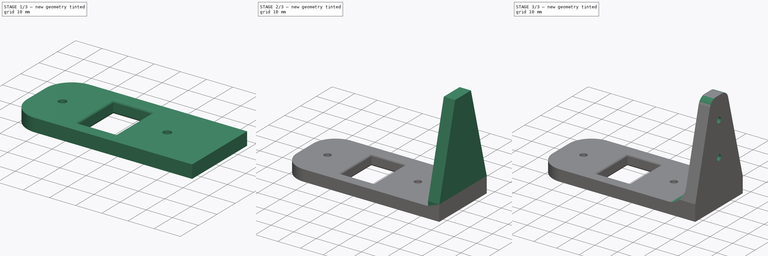
[diagram: build sequence overview — one tinted view per stage of 3, left to right]
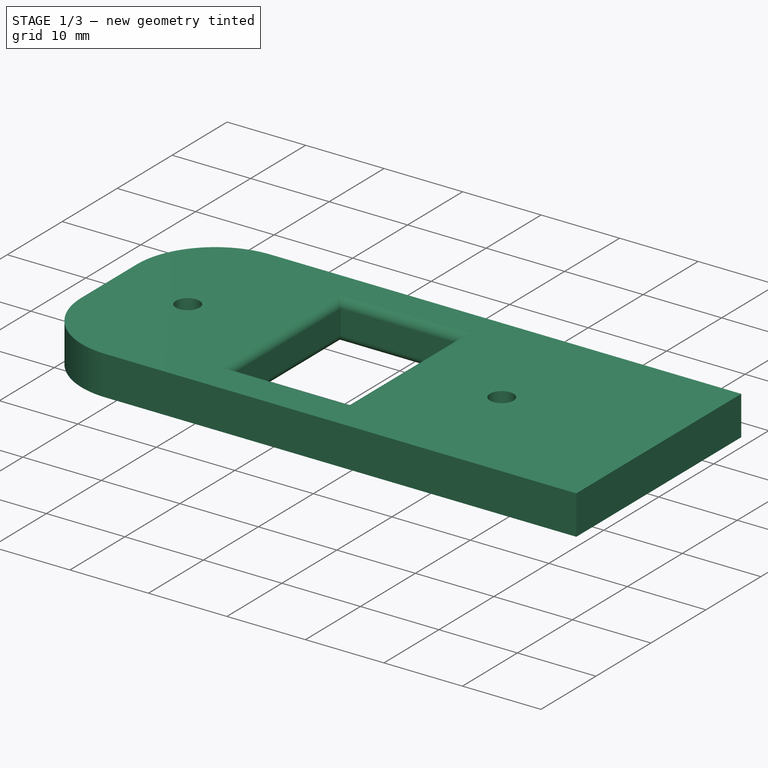
[diagram: stage 1 of 3 — iso view after this stage's code; geometry added in this stage tinted green]
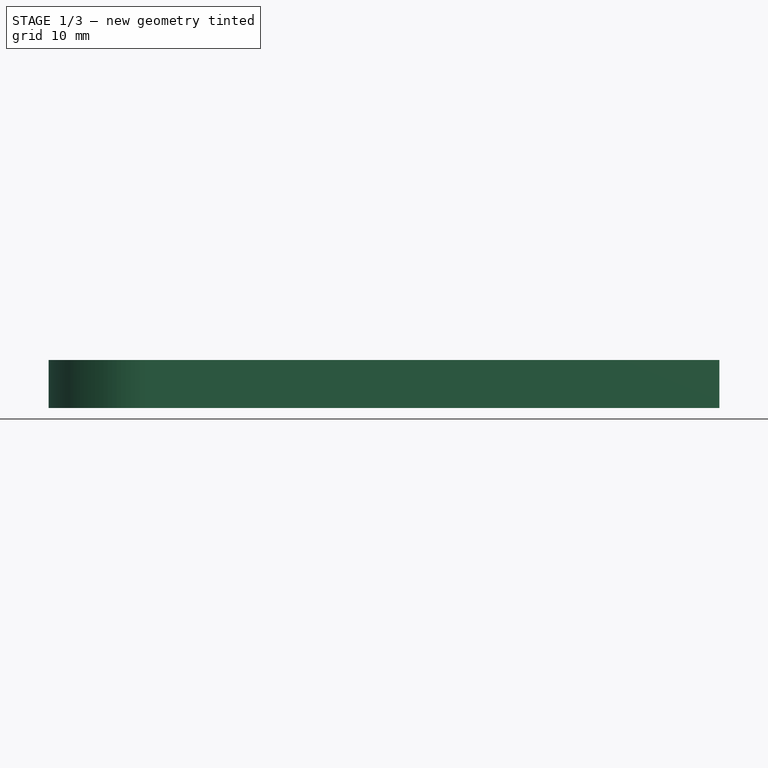
[diagram: stage 1 of 3 — front view after this stage's code; geometry added in this stage tinted green]
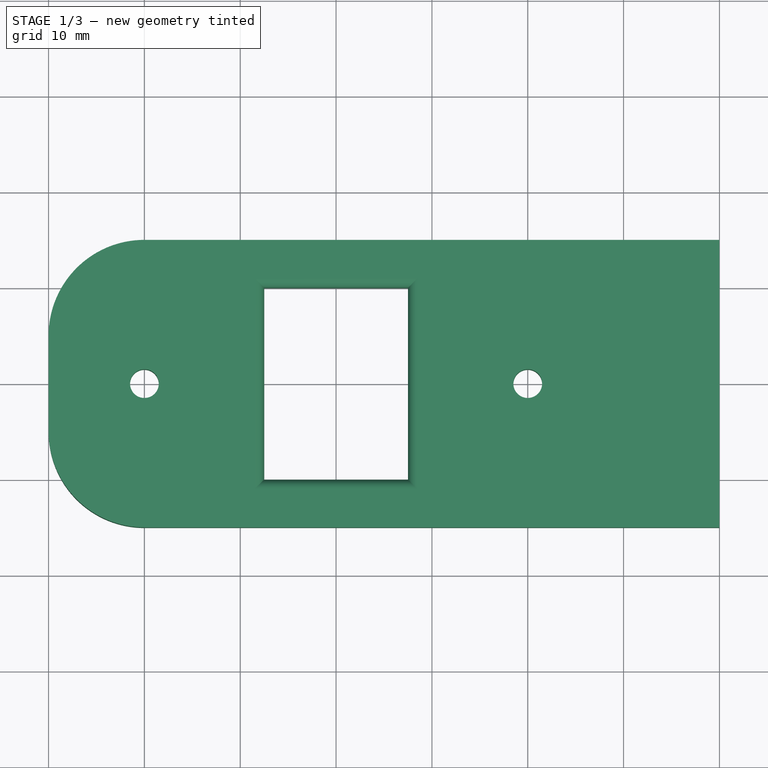
[diagram: stage 1 of 3 — top view after this stage's code; geometry added in this stage tinted green]
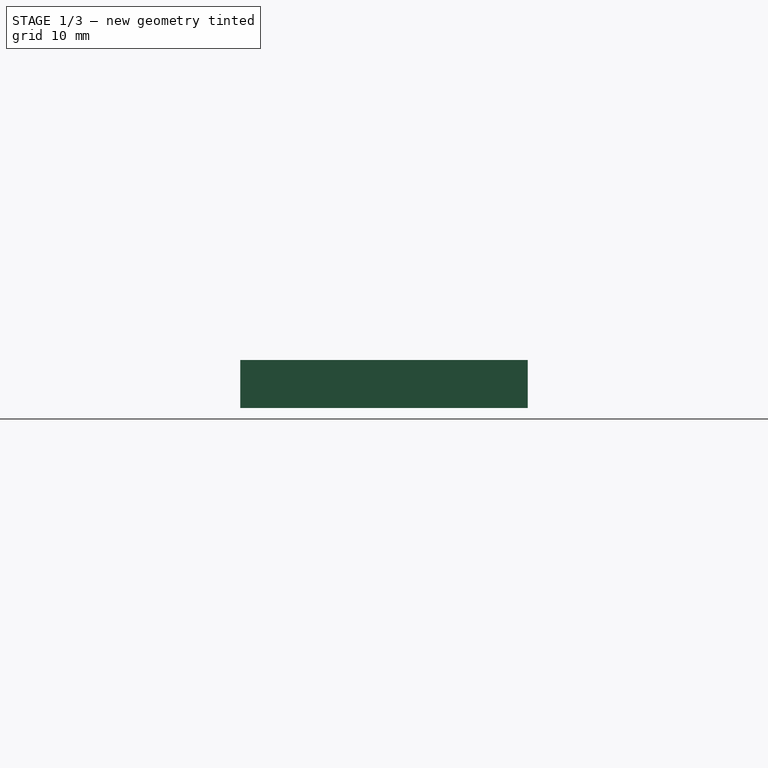
[diagram: stage 1 of 3 — right view after this stage's code; geometry added in this stage tinted green]
FCSTD DOCUMENT  (FreeCAD 1.0R39104 (Git))
Label: Haltewinkel
License: All rights reserved
LicenseURL: https://en.wikipedia.org/wiki/All_rights_reserved
objects: PartDesign::Fillet×4, Sketcher::SketchObject×3, PartDesign::Pad×2, PartDesign::Chamfer×1, PartDesign::Pocket×1, PartDesign::Body×1
note: 31 computed .brp shape members not serialized (recipe doc carries the construction recipe); baked Part::Feature solids carry a one-line shape summary decoded from their .brp

FEATURE [Sketcher::SketchObject] Sketch
  ArcFitTolerance = 1e-06
  AttachmentSupport = -> [XY_Plane001]
  FullyConstrained = true
  MakeInternals = false
  MapMode = 5
  sketch-geometry (15):
    g0: Circle CenterX=2e-16 CenterY=0 CenterZ=0 NormalX=0 NormalY=0 NormalZ=1 AngleXU=0 Radius=1.5
    g1: Circle CenterX=40 CenterY=0 CenterZ=0 NormalX=0 NormalY=0 NormalZ=1 AngleXU=0 Radius=1.5
    g2: LineSegment StartX=-10 StartY=15 StartZ=0 EndX=-10 EndY=-15 EndZ=0
    g3: LineSegment StartX=-10 StartY=-15 StartZ=0 EndX=60 EndY=-15 EndZ=0
    g4: LineSegment StartX=60 StartY=-15 StartZ=0 EndX=60 EndY=15 EndZ=0
    g5: LineSegment StartX=60 StartY=15 StartZ=0 EndX=-10 EndY=15 EndZ=0
    g6: LineSegment [constr] StartX=2e-16 StartY=0 StartZ=0 EndX=-10 EndY=15 EndZ=0
    g7: LineSegment [constr] StartX=2e-16 StartY=0 StartZ=0 EndX=-10 EndY=-15 EndZ=0
    g8: LineSegment StartX=12.5 StartY=-10 StartZ=0 EndX=27.5 EndY=-10 EndZ=0
    g9: LineSegment StartX=27.5 StartY=-10 StartZ=0 EndX=27.5 EndY=10 EndZ=0
    g10: LineSegment StartX=27.5 StartY=10 StartZ=0 EndX=12.5 EndY=10 EndZ=0
    g11: LineSegment StartX=12.5 StartY=10 StartZ=0 EndX=12.5 EndY=-10 EndZ=0
    g12: GeomPoint [constr] X=20 Y=0 Z=0
    g13: LineSegment [constr] StartX=2e-16 StartY=0 StartZ=0 EndX=20 EndY=0 EndZ=0
    g14: LineSegment [constr] StartX=20 StartY=0 StartZ=0 EndX=40 EndY=0 EndZ=0
  constraints (38):
    c: PointOnObject(g1,g-1)
    c: DistanceX(g0,g1) = 40
    c: Equal(g1,g0)
    c: Diameter(g1) = 3
    c: Coincident(g0,g-1)
    c: Coincident(g2,g3)
    c: Coincident(g3,g4)
    c: Coincident(g4,g5)
    c: Coincident(g5,g2)
    c: Vertical(g2)
    c: Vertical(g4)
    c: Horizontal(g3)
    c: Horizontal(g5)
    c: Coincident(g6,g0)
    c: Coincident(g6,g2)
    c: Coincident(g7,g0)
    c: Coincident(g7,g2)
    c: Equal(g6,g7)
    c: DistanceY(g2,g2) = 30
    c: DistanceX(g6,g6) = 10
    c: DistanceX(g1,g4) = 20
    c: Coincident(g8,g9)
    c: Coincident(g9,g10)
    c: Coincident(g10,g11)
    c: Coincident(g11,g8)
    c: Horizontal(g8)
    c: Horizontal(g10)
    c: Vertical(g9)
    c: Vertical(g11)
    c: Symmetric(g10,g8,g12)
    c: PointOnObject(g12,g-1)
    c: Coincident(g13,g0)
    c: Coincident(g13,g12)
    c: Coincident(g14,g12)
    c: Coincident(g14,g1)
    c: Equal(g14,g13)
    c: DistanceY(g9,g9) = 20
    c: DistanceX(g10,g10) = 15
FEATURE [PartDesign::Pad] Pad
  Direction = (0,0,1)
  Length = 5
  Length2 = 10
  Profile = -> Sketch
  ReferenceAxis = -> Sketch [N_Axis]
  Refine = true
  Suppressed = false
  Type = 0
FEATURE [PartDesign::Fillet] Fillet
  Base = -> Pad [Edge1,Edge2]
  BaseFeature = -> Pad
  Radius = 10
  Refine = true
  SupportTransform = false
  Suppressed = false
  UseAllEdges = false
FEATURE [PartDesign::Fillet] Fillet001
  Base = -> Fillet [Edge26,Edge13,Edge12,Edge25,Edge24,Edge23,Edge11,Edge10]
  BaseFeature = -> Fillet
  Radius = 1
  Refine = true
  SupportTransform = false
  Suppressed = false
  UseAllEdges = false
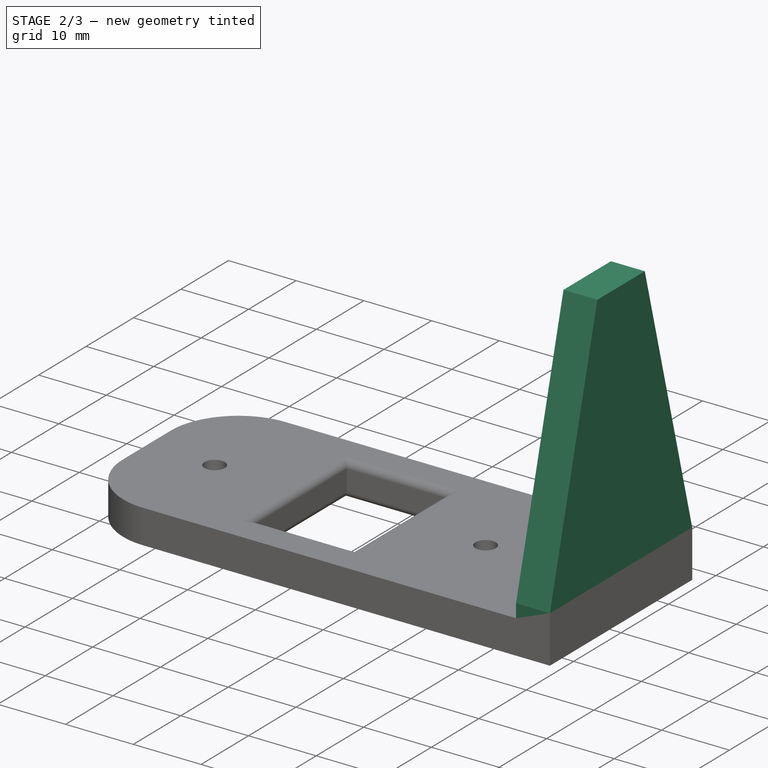
[diagram: stage 2 of 3 — iso view after this stage's code; geometry added in this stage tinted green]
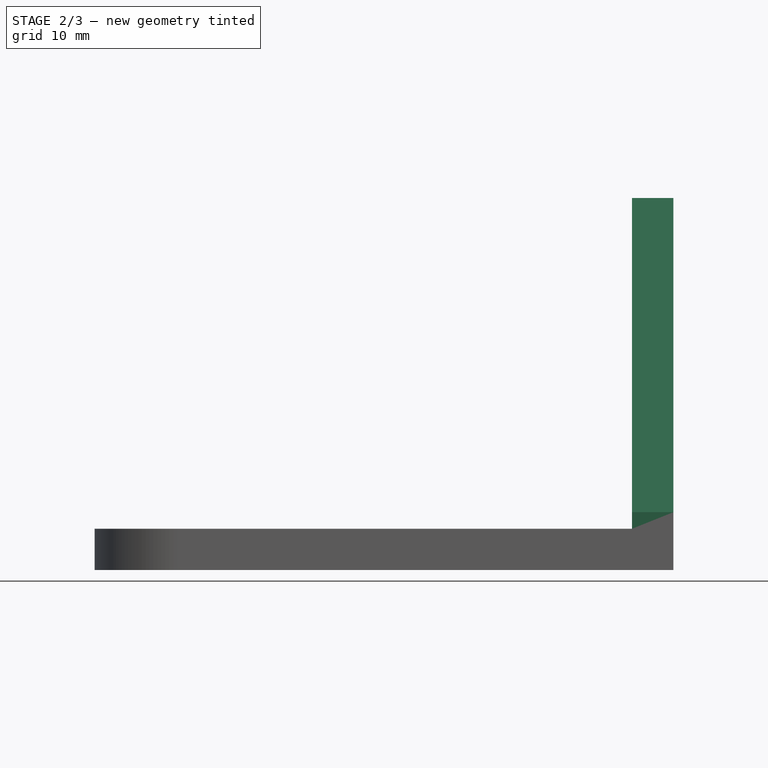
[diagram: stage 2 of 3 — front view after this stage's code; geometry added in this stage tinted green]
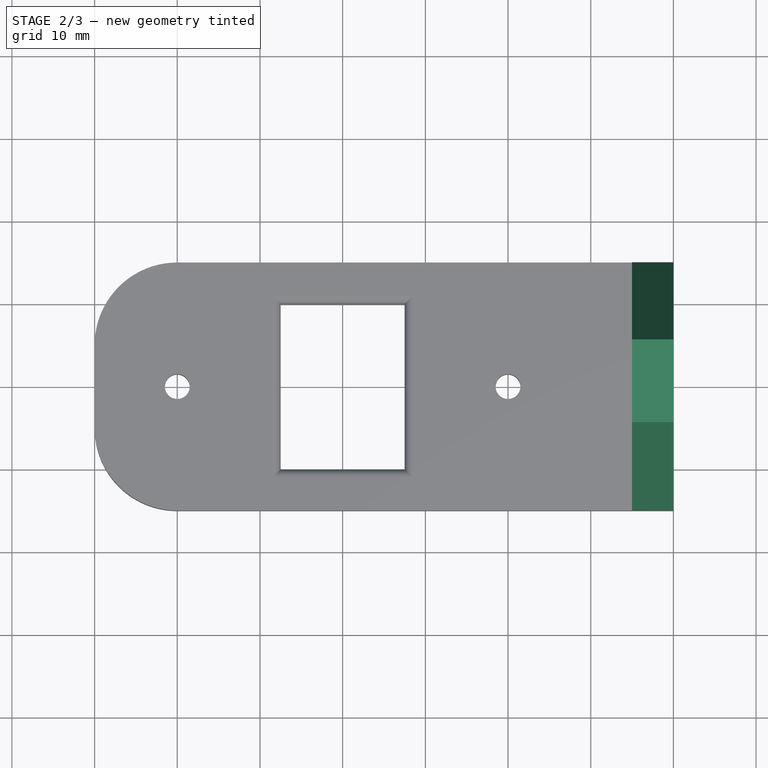
[diagram: stage 2 of 3 — top view after this stage's code; geometry added in this stage tinted green]
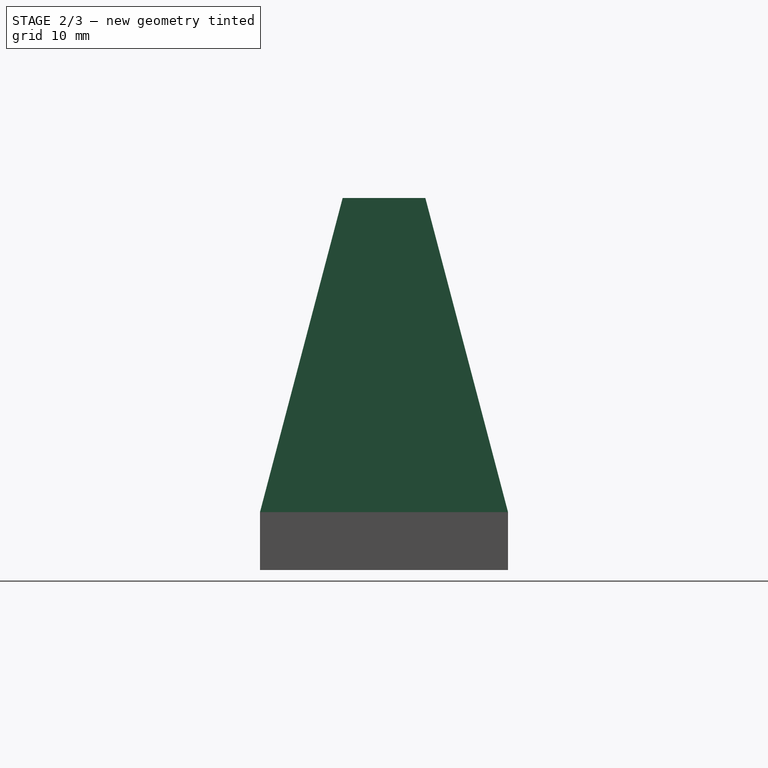
[diagram: stage 2 of 3 — right view after this stage's code; geometry added in this stage tinted green]
FEATURE [Sketcher::SketchObject] Sketch001
  ArcFitTolerance = 1e-06
  AttachmentSupport = -> [Fillet001]
  ExternalGeometry = -> [Fillet001]
  FullyConstrained = true
  MakeInternals = false
  MapMode = 5
  Placement = pos=(0,0,5) rot=(0,0,1;0rad)
  sketch-geometry (4):
    g0: LineSegment StartX=60 StartY=15 StartZ=0 EndX=55 EndY=15 EndZ=0
    g1: LineSegment StartX=55 StartY=15 StartZ=0 EndX=55 EndY=-15 EndZ=0
    g2: LineSegment StartX=55 StartY=-15 StartZ=0 EndX=60 EndY=-15 EndZ=0
    g3: LineSegment StartX=60 StartY=-15 StartZ=0 EndX=60 EndY=15 EndZ=0
  constraints (10):
    c: Coincident(g0,g1)
    c: Coincident(g1,g2)
    c: Coincident(g2,g3)
    c: Coincident(g3,g0)
    c: Horizontal(g0)
    c: Horizontal(g2)
    c: Vertical(g1)
    c: Coincident(g0,g-3)
    c: Coincident(g2,g-3)
    c: DistanceX(g2,g2) = 5
FEATURE [PartDesign::Pad] Pad001
  BaseFeature = -> Fillet001
  Direction = (0,0,1)
  Length = 40
  Length2 = 10
  Profile = -> Sketch001
  ReferenceAxis = -> Sketch001 [N_Axis]
  Refine = true
  Suppressed = false
  Type = 0
FEATURE [PartDesign::Chamfer] Chamfer
  Angle = 45
  Base = -> Pad001 [Edge55,Edge54]
  BaseFeature = -> Pad001
  ChamferType = 1
  FlipDirection = false
  Refine = true
  Size = 10
  Size2 = 38
  SupportTransform = false
  Suppressed = false
  UseAllEdges = false
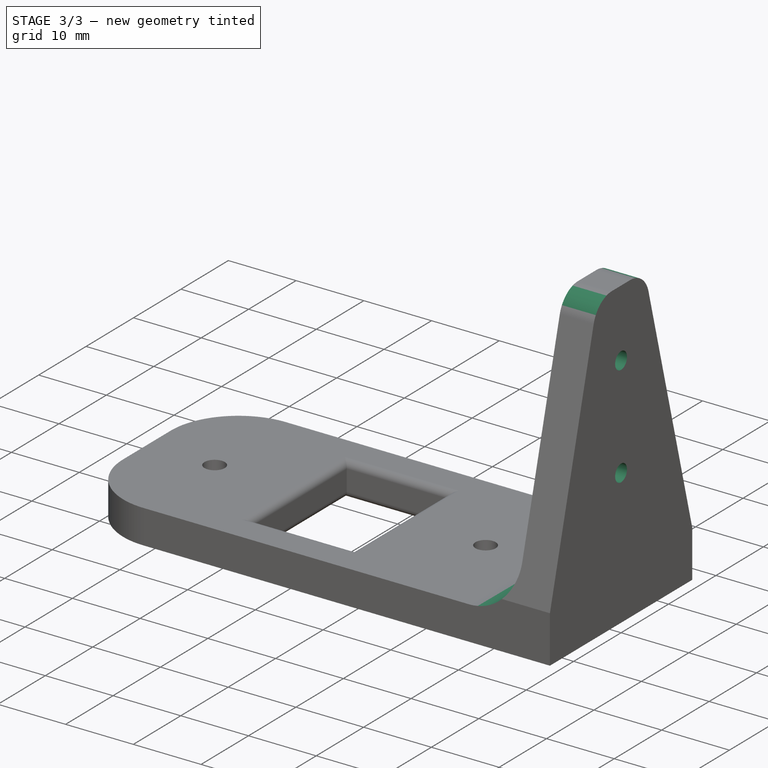
[diagram: stage 3 of 3 — iso view after this stage's code; geometry added in this stage tinted green]
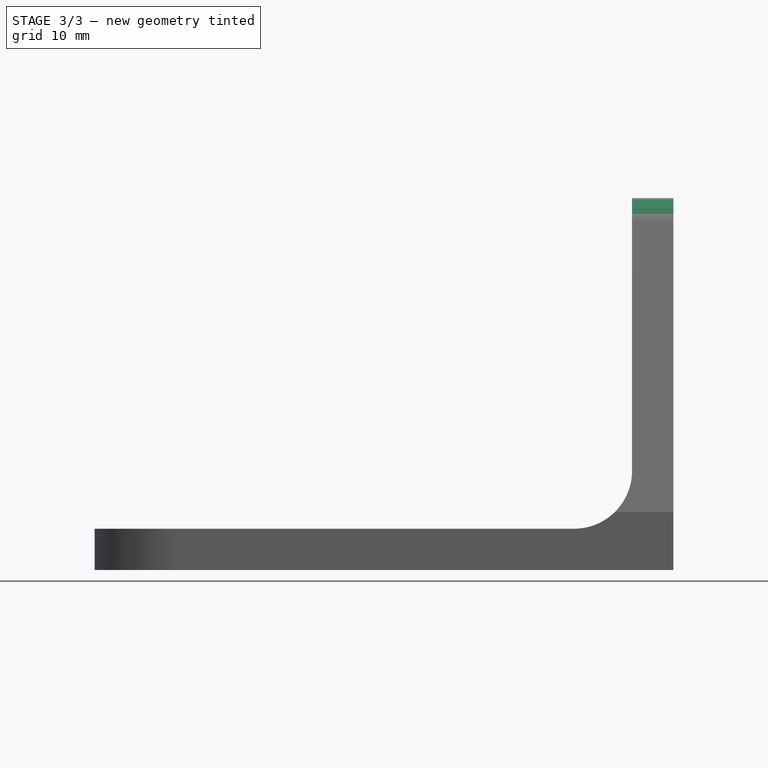
[diagram: stage 3 of 3 — front view after this stage's code; geometry added in this stage tinted green]
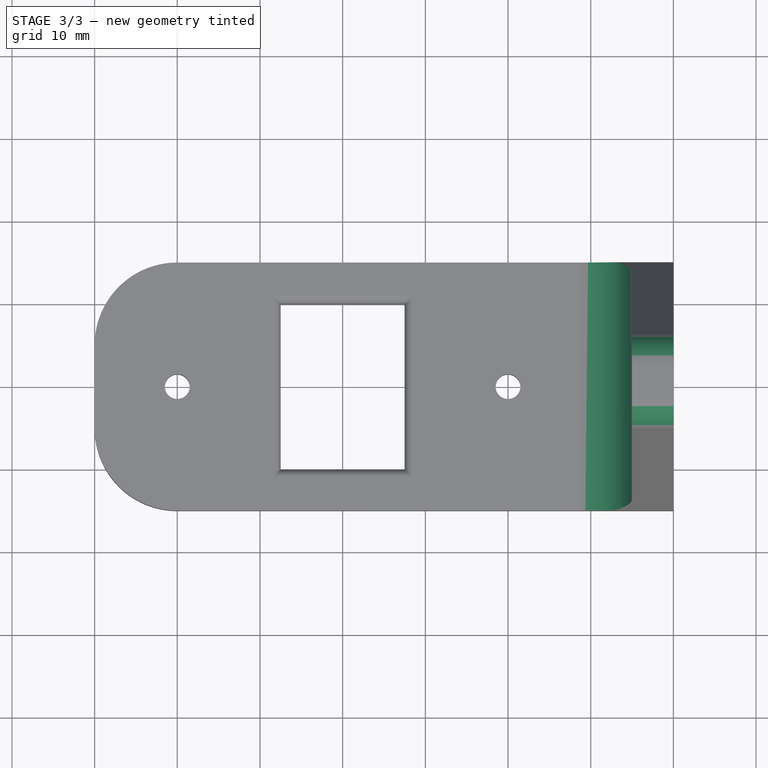
[diagram: stage 3 of 3 — top view after this stage's code; geometry added in this stage tinted green]
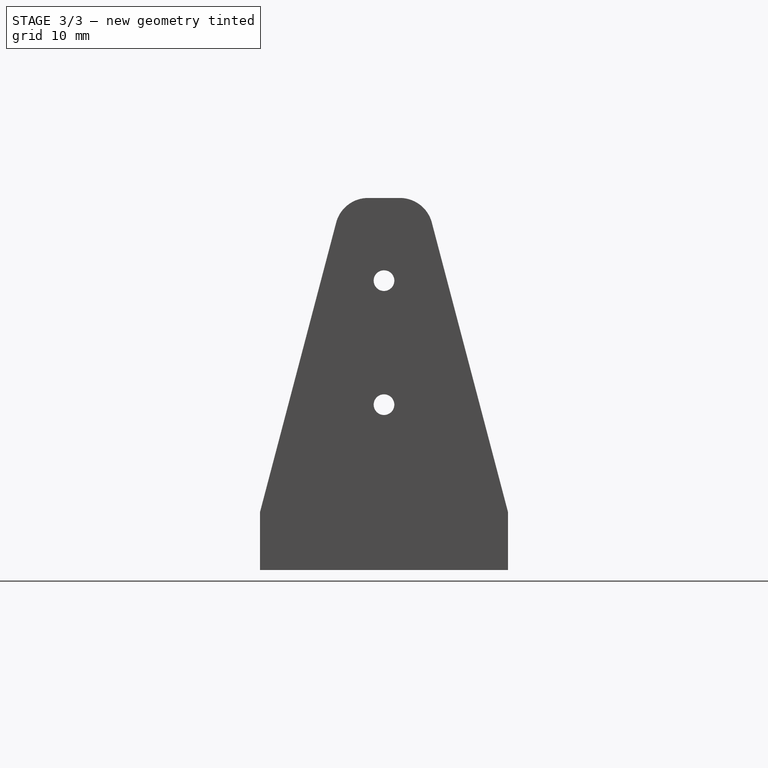
[diagram: stage 3 of 3 — right view after this stage's code; geometry added in this stage tinted green]
FEATURE [PartDesign::Fillet] Fillet002
  Base = -> Chamfer [Edge3]
  BaseFeature = -> Chamfer
  Radius = 7
  Refine = true
  SupportTransform = false
  Suppressed = false
  UseAllEdges = false
FEATURE [Sketcher::SketchObject] Sketch002
  ArcFitTolerance = 1e-06
  AttachmentSupport = -> [Fillet002]
  ExternalGeometry = -> [Fillet002]
  FullyConstrained = true
  MakeInternals = false
  MapMode = 5
  Placement = pos=(60,0,0) rot=(0.57735,0.57735,0.57735;2.0944rad)
  sketch-geometry (2):
    g0: Circle CenterX=0 CenterY=35 CenterZ=0 NormalX=0 NormalY=0 NormalZ=1 AngleXU=0 Radius=1.25
    g1: Circle CenterX=0 CenterY=20 CenterZ=0 NormalX=0 NormalY=0 NormalZ=1 AngleXU=0 Radius=1.25
  constraints (6):
    c: PointOnObject(g0,g-2)
    c: PointOnObject(g1,g-2)
    c: Equal(g1,g0)
    c: DistanceY(g1,g0) = 15
    c: Diameter(g0) = 2.5
    c: DistanceY(g0,g-3) = 10
FEATURE [PartDesign::Pocket] Pocket
  BaseFeature = -> Fillet002
  Direction = (-1,0,0)
  Length = 5
  Length2 = 5
  Profile = -> Sketch002
  ReferenceAxis = -> Sketch002 [N_Axis]
  Refine = true
  Suppressed = false
  Type = 1
FEATURE [PartDesign::Fillet] Fillet003
  Base = -> Pocket [Edge10,Edge15]
  BaseFeature = -> Pocket
  Radius = 4
  Refine = true
  SupportTransform = false
  Suppressed = false
  UseAllEdges = false
FEATURE [PartDesign::Body] Body001  label="Körper001"
  AllowCompound = false
  Group = -> [Sketch,Pad,Fillet,Fillet001,Sketch001,Pad001,Chamfer,Fillet002,Sketch002,Pocket,Fillet003]
  Origin = -> Origin001
  Tip = -> Fillet003
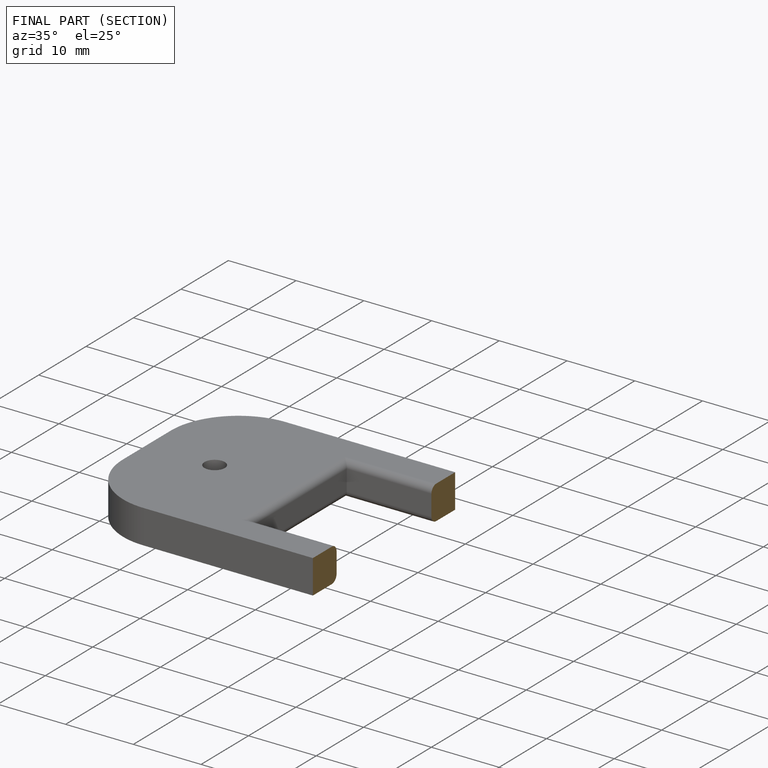
[diagram: finished part — half-section view (interior)]
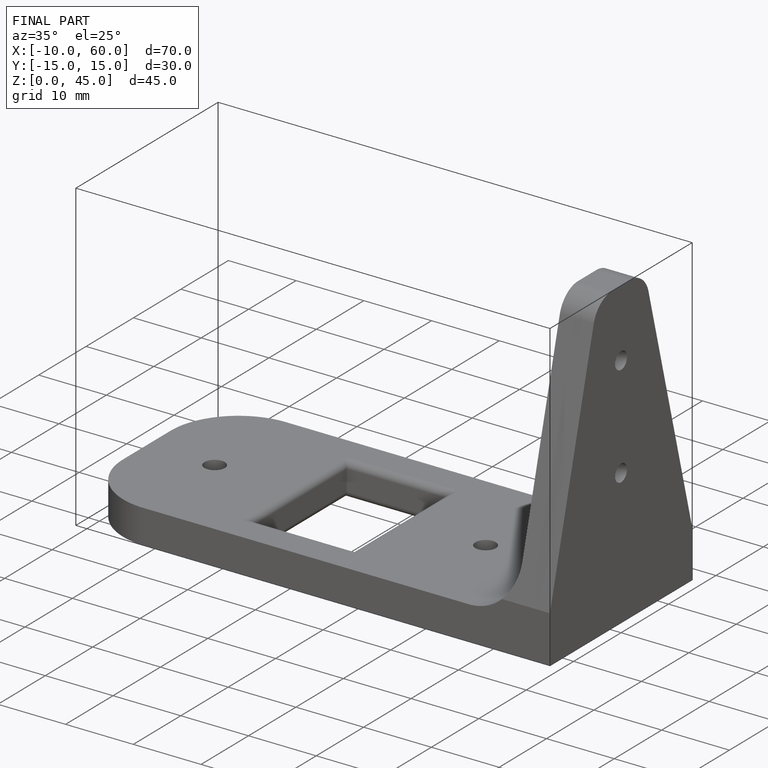
[diagram: finished part — iso view with bounding-box wireframe]
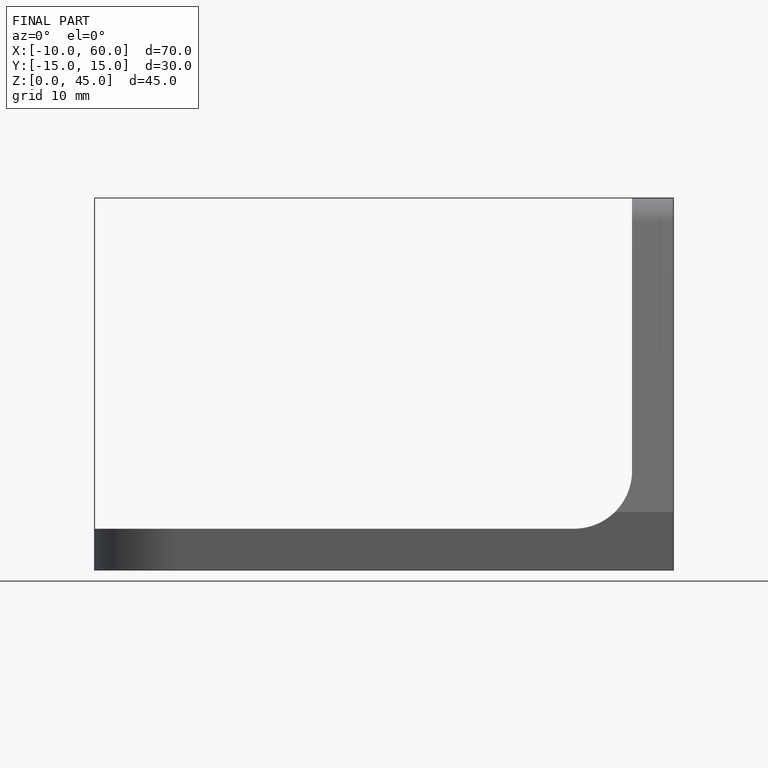
[diagram: finished part — front view with bounding-box wireframe]
